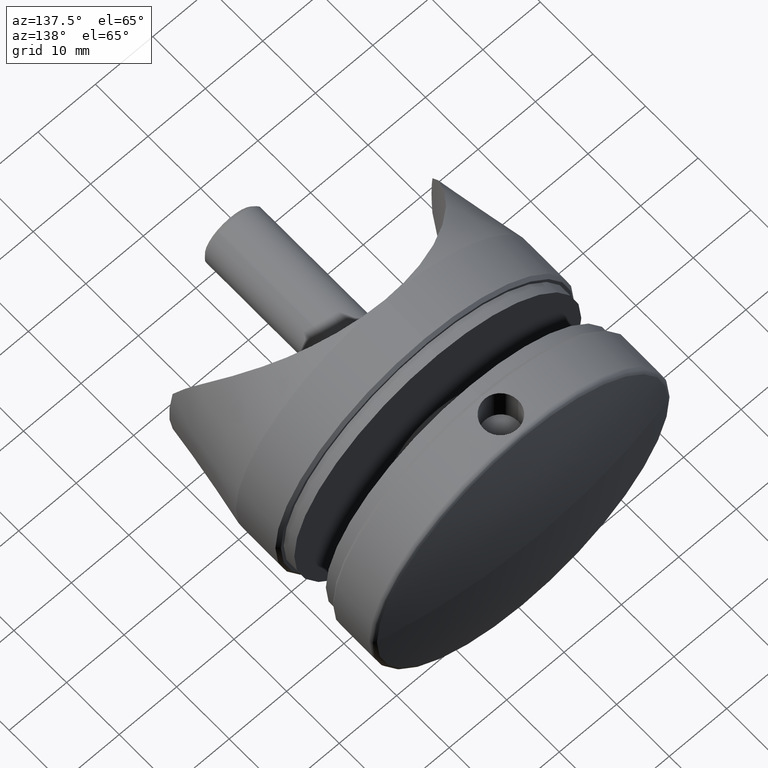
[diagram: clean part render]
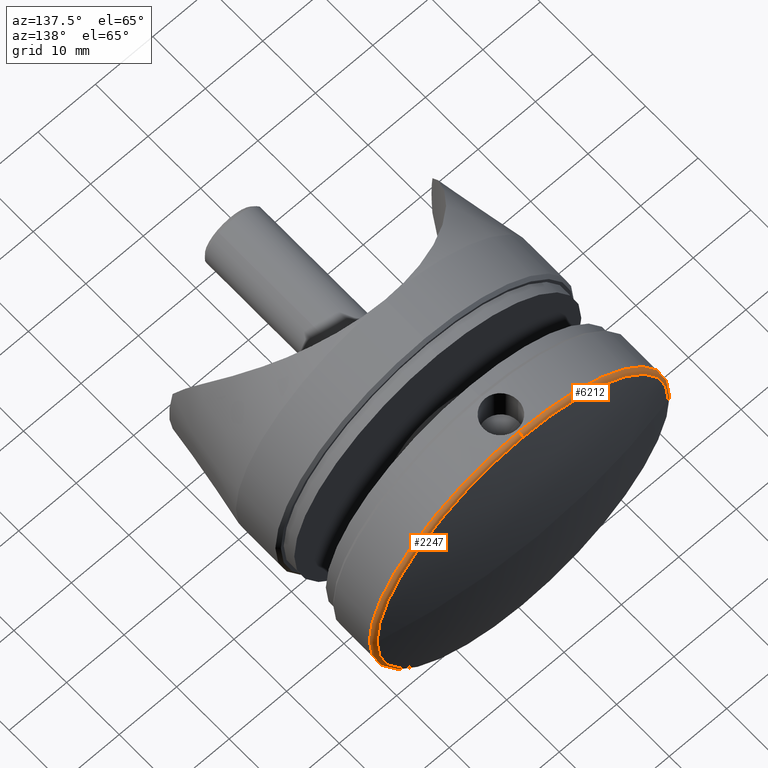
[diagram: same view with one multi-face feature highlighted, each face labeled with its STEP entity id]
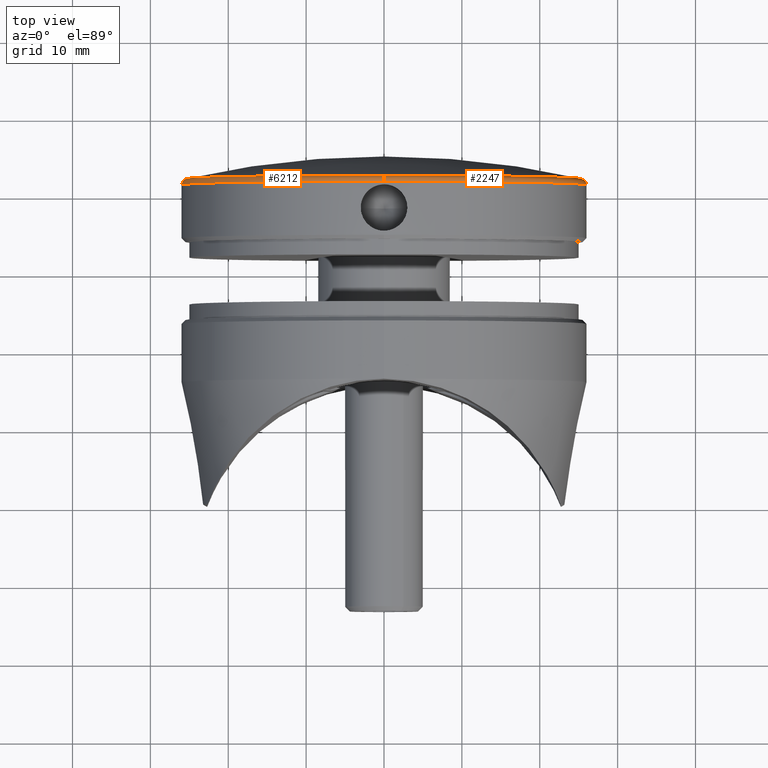
[diagram: same view with one multi-face feature highlighted, each face labeled with its STEP entity id]
A machine part, auxiliary view. The highlighted faces form ONE feature: a constant-radius fillet chain: 2 tangent blend faces with common blend radius 0.8 mm. The faces share edges in the B-rep.
A second angle (top view) of the same feature is appended — it is thin or edge-on in the first view.
Their STEP definitions:
[1] entity #2247 (Torus):
#451 = VERTEX_POINT ( 'NONE', #19190 ) ;
#861 = VERTEX_POINT ( 'NONE', #1126 ) ;
#1126 = CARTESIAN_POINT ( 'NONE',  ( 3.184081677783118191E-15, 15.36369618043119800, 25.99999999999999645 ) ) ;
#1384 = VERTEX_POINT ( 'NONE', #9663 ) ;
#1652 = CIRCLE ( 'NONE', #3962, 25.99999999999999645 ) ;
#1961 = AXIS2_PLACEMENT_3D ( 'NONE', #10582, #11983, #10765 ) ;
#2247 = ADVANCED_FACE ( 'NONE', ( #7025 ), #6136, .T. ) ;
#3070 = ORIENTED_EDGE ( 'NONE', *, *, #10981, .T. ) ;
#3116 = DIRECTION ( 'NONE',  ( -0.000000000000000000, -1.000000000000000000, -0.000000000000000000 ) ) ;
#3740 = ORIENTED_EDGE ( 'NONE', *, *, #8122, .T. ) ;
#3962 = AXIS2_PLACEMENT_3D ( 'NONE', #13517, #3116, #4540 ) ;
#4540 = DIRECTION ( 'NONE',  ( 0.000000000000000000, 0.000000000000000000, -1.000000000000000000 ) ) ;
#4662 = CARTESIAN_POINT ( 'NONE',  ( 0.000000000000000000, 15.36369618043119800, 0.000000000000000000 ) ) ;
#4892 = ORIENTED_EDGE ( 'NONE', *, *, #6017, .F. ) ;
#5119 = CIRCLE ( 'NONE', #11206, 0.7999999999999951594 ) ;
#5448 = DIRECTION ( 'NONE',  ( 1.000000000000000000, 0.000000000000000000, -1.224646799147353207E-16 ) ) ;
#5859 = CARTESIAN_POINT ( 'NONE',  ( 0.000000000000000000, 16.14368109908169302, -25.37783004998528824 ) ) ;
#6017 = EDGE_CURVE ( 'NONE', #451, #861, #1652, .T. ) ;
#6045 = DIRECTION ( 'NONE',  ( 0.000000000000000000, 0.000000000000000000, -1.000000000000000000 ) ) ;
#6136 = TOROIDAL_SURFACE ( 'NONE', #8622, 25.19999999999999929, 0.7999999999999949374 ) ;
#6251 = VERTEX_POINT ( 'NONE', #5859 ) ;
#7025 = FACE_OUTER_BOUND ( 'NONE', #18423, .T. ) ;
#7941 = CIRCLE ( 'NONE', #1961, 0.7999999999999951594 ) ;
#8122 = EDGE_CURVE ( 'NONE', #1384, #861, #5119, .T. ) ;
#8364 = AXIS2_PLACEMENT_3D ( 'NONE', #12762, #17132, #12702 ) ;
#8622 = AXIS2_PLACEMENT_3D ( 'NONE', #4662, #9117, #6045 ) ;
#9117 = DIRECTION ( 'NONE',  ( -0.000000000000000000, -1.000000000000000000, -0.000000000000000000 ) ) ;
#9234 = ORIENTED_EDGE ( 'NONE', *, *, #18931, .F. ) ;
#9317 = ORIENTED_EDGE ( 'NONE', *, *, #12190, .T. ) ;
#9663 = CARTESIAN_POINT ( 'NONE',  ( 3.145984755892558472E-15, 16.14368109908169302, 25.37783004998528824 ) ) ;
#9918 = CARTESIAN_POINT ( 'NONE',  ( 0.000000000000000000, 16.14368109908169302, 0.000000000000000000 ) ) ;
#10582 = CARTESIAN_POINT ( 'NONE',  ( 0.000000000000000000, 15.36369618043119800, -25.19999999999999929 ) ) ;
#10765 = DIRECTION ( 'NONE',  ( 0.000000000000000000, 0.000000000000000000, 1.000000000000000000 ) ) ;
#10834 = CIRCLE ( 'NONE', #12580, 25.37783004998528824 ) ;
#10981 = EDGE_CURVE ( 'NONE', #13850, #1384, #17343, .T. ) ;
#11206 = AXIS2_PLACEMENT_3D ( 'NONE', #12846, #5448, #14406 ) ;
#11983 = DIRECTION ( 'NONE',  ( -1.000000000000000000, 0.000000000000000000, 0.000000000000000000 ) ) ;
#12190 = EDGE_CURVE ( 'NONE', #6251, #13850, #10834, .T. ) ;
#12580 = AXIS2_PLACEMENT_3D ( 'NONE', #9918, #13009, #16124 ) ;
#12702 = DIRECTION ( 'NONE',  ( 0.000000000000000000, 0.000000000000000000, -1.000000000000000000 ) ) ;
#12762 = CARTESIAN_POINT ( 'NONE',  ( 0.000000000000000000, 16.14368109908169302, 0.000000000000000000 ) ) ;
#12846 = CARTESIAN_POINT ( 'NONE',  ( 3.086109933851330151E-15, 15.36369618043119800, 25.19999999999999929 ) ) ;
#13009 = DIRECTION ( 'NONE',  ( -0.000000000000000000, -1.000000000000000000, -0.000000000000000000 ) ) ;
#13517 = CARTESIAN_POINT ( 'NONE',  ( 0.000000000000000000, 15.36369618043119800, 0.000000000000000000 ) ) ;
#13850 = VERTEX_POINT ( 'NONE', #16667 ) ;
#14406 = DIRECTION ( 'NONE',  ( -1.224646799147353947E-16, 0.000000000000000000, -1.000000000000000000 ) ) ;
#16124 = DIRECTION ( 'NONE',  ( 0.000000000000000000, 0.000000000000000000, -1.000000000000000000 ) ) ;
#16667 = CARTESIAN_POINT ( 'NONE',  ( 25.37783004998529535, 16.14368109908169302, 0.000000000000000000 ) ) ;
#17132 = DIRECTION ( 'NONE',  ( -0.000000000000000000, -1.000000000000000000, -0.000000000000000000 ) ) ;
#17343 = CIRCLE ( 'NONE', #8364, 25.37783004998528824 ) ;
#18423 = EDGE_LOOP ( 'NONE', ( #3070, #3740, #4892, #9234, #9317 ) ) ;
#18931 = EDGE_CURVE ( 'NONE', #6251, #451, #7941, .T. ) ;
#19190 = CARTESIAN_POINT ( 'NONE',  ( 0.000000000000000000, 15.36369618043119800, -25.99999999999999645 ) ) ;
[2] entity #6212 (Torus):
#353 = AXIS2_PLACEMENT_3D ( 'NONE', #14685, #7282, #13339 ) ;
#451 = VERTEX_POINT ( 'NONE', #19190 ) ;
#802 = AXIS2_PLACEMENT_3D ( 'NONE', #9270, #10767, #12234 ) ;
#861 = VERTEX_POINT ( 'NONE', #1126 ) ;
#1126 = CARTESIAN_POINT ( 'NONE',  ( 3.184081677783118191E-15, 15.36369618043119800, 25.99999999999999645 ) ) ;
#1384 = VERTEX_POINT ( 'NONE', #9663 ) ;
#1961 = AXIS2_PLACEMENT_3D ( 'NONE', #10582, #11983, #10765 ) ;
#2511 = EDGE_CURVE ( 'NONE', #1384, #3642, #18586, .T. ) ;
#2985 = DIRECTION ( 'NONE',  ( 0.000000000000000000, 0.000000000000000000, -1.000000000000000000 ) ) ;
#3642 = VERTEX_POINT ( 'NONE', #3685 ) ;
#3685 = CARTESIAN_POINT ( 'NONE',  ( -25.37783004998529535, 16.14368109908169302, 3.107887834002000330E-15 ) ) ;
#4569 = DIRECTION ( 'NONE',  ( 0.000000000000000000, 0.000000000000000000, -1.000000000000000000 ) ) ;
#4816 = DIRECTION ( 'NONE',  ( -0.000000000000000000, -1.000000000000000000, -0.000000000000000000 ) ) ;
#5119 = CIRCLE ( 'NONE', #11206, 0.7999999999999951594 ) ;
#5448 = DIRECTION ( 'NONE',  ( 1.000000000000000000, 0.000000000000000000, -1.224646799147353207E-16 ) ) ;
#5675 = CIRCLE ( 'NONE', #15829, 25.37783004998528824 ) ;
#5859 = CARTESIAN_POINT ( 'NONE',  ( 0.000000000000000000, 16.14368109908169302, -25.37783004998528824 ) ) ;
#6212 = ADVANCED_FACE ( 'NONE', ( #8327 ), #11814, .T. ) ;
#6251 = VERTEX_POINT ( 'NONE', #5859 ) ;
#6389 = EDGE_LOOP ( 'NONE', ( #11958, #10886, #14531, #14913, #17996 ) ) ;
#7282 = DIRECTION ( 'NONE',  ( -0.000000000000000000, -1.000000000000000000, -0.000000000000000000 ) ) ;
#7941 = CIRCLE ( 'NONE', #1961, 0.7999999999999951594 ) ;
#8122 = EDGE_CURVE ( 'NONE', #1384, #861, #5119, .T. ) ;
#8327 = FACE_OUTER_BOUND ( 'NONE', #6389, .T. ) ;
#9098 = AXIS2_PLACEMENT_3D ( 'NONE', #17616, #16092, #2985 ) ;
#9210 = CARTESIAN_POINT ( 'NONE',  ( 0.000000000000000000, 16.14368109908169302, 0.000000000000000000 ) ) ;
#9270 = CARTESIAN_POINT ( 'NONE',  ( 0.000000000000000000, 15.36369618043119800, 0.000000000000000000 ) ) ;
#9663 = CARTESIAN_POINT ( 'NONE',  ( 3.145984755892558472E-15, 16.14368109908169302, 25.37783004998528824 ) ) ;
#10582 = CARTESIAN_POINT ( 'NONE',  ( 0.000000000000000000, 15.36369618043119800, -25.19999999999999929 ) ) ;
#10765 = DIRECTION ( 'NONE',  ( 0.000000000000000000, 0.000000000000000000, 1.000000000000000000 ) ) ;
#10767 = DIRECTION ( 'NONE',  ( -0.000000000000000000, -1.000000000000000000, -0.000000000000000000 ) ) ;
#10886 = ORIENTED_EDGE ( 'NONE', *, *, #2511, .T. ) ;
#11206 = AXIS2_PLACEMENT_3D ( 'NONE', #12846, #5448, #14406 ) ;
#11814 = TOROIDAL_SURFACE ( 'NONE', #9098, 25.19999999999999929, 0.7999999999999949374 ) ;
#11958 = ORIENTED_EDGE ( 'NONE', *, *, #8122, .F. ) ;
#11983 = DIRECTION ( 'NONE',  ( -1.000000000000000000, 0.000000000000000000, 0.000000000000000000 ) ) ;
#12234 = DIRECTION ( 'NONE',  ( 0.000000000000000000, 0.000000000000000000, -1.000000000000000000 ) ) ;
#12846 = CARTESIAN_POINT ( 'NONE',  ( 3.086109933851330151E-15, 15.36369618043119800, 25.19999999999999929 ) ) ;
#13339 = DIRECTION ( 'NONE',  ( 0.000000000000000000, 0.000000000000000000, -1.000000000000000000 ) ) ;
#14406 = DIRECTION ( 'NONE',  ( -1.224646799147353947E-16, 0.000000000000000000, -1.000000000000000000 ) ) ;
#14531 = ORIENTED_EDGE ( 'NONE', *, *, #18902, .T. ) ;
#14685 = CARTESIAN_POINT ( 'NONE',  ( 0.000000000000000000, 16.14368109908169302, 0.000000000000000000 ) ) ;
#14913 = ORIENTED_EDGE ( 'NONE', *, *, #18931, .T. ) ;
#15769 = EDGE_CURVE ( 'NONE', #861, #451, #18898, .T. ) ;
#15829 = AXIS2_PLACEMENT_3D ( 'NONE', #9210, #4816, #4569 ) ;
#16092 = DIRECTION ( 'NONE',  ( -0.000000000000000000, -1.000000000000000000, -0.000000000000000000 ) ) ;
#17616 = CARTESIAN_POINT ( 'NONE',  ( 0.000000000000000000, 15.36369618043119800, 0.000000000000000000 ) ) ;
#17996 = ORIENTED_EDGE ( 'NONE', *, *, #15769, .F. ) ;
#18586 = CIRCLE ( 'NONE', #353, 25.37783004998528824 ) ;
#18898 = CIRCLE ( 'NONE', #802, 25.99999999999999645 ) ;
#18902 = EDGE_CURVE ( 'NONE', #3642, #6251, #5675, .T. ) ;
#18931 = EDGE_CURVE ( 'NONE', #6251, #451, #7941, .T. ) ;
#19190 = CARTESIAN_POINT ( 'NONE',  ( 0.000000000000000000, 15.36369618043119800, -25.99999999999999645 ) ) ;